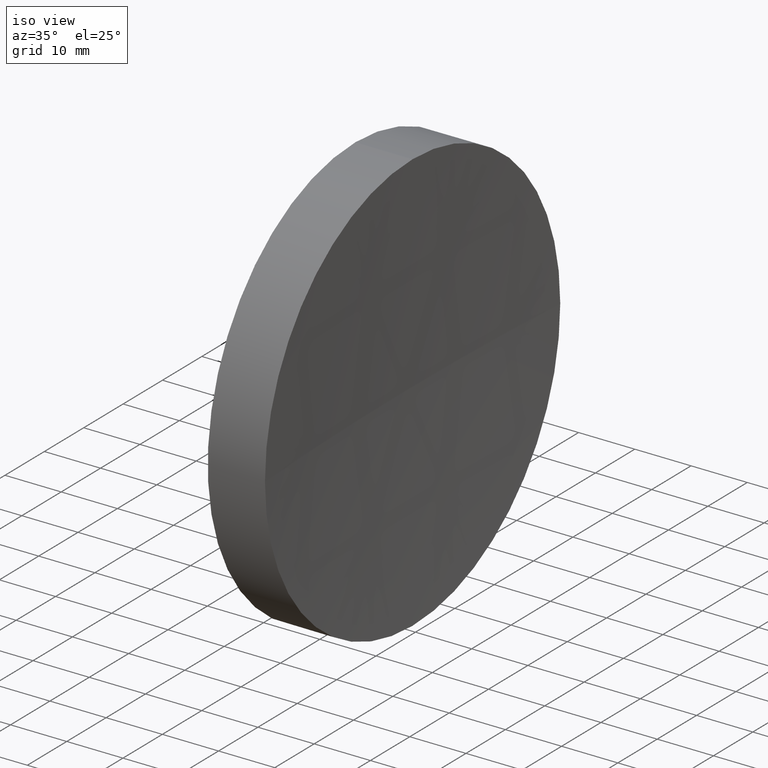
[diagram: clean part render]
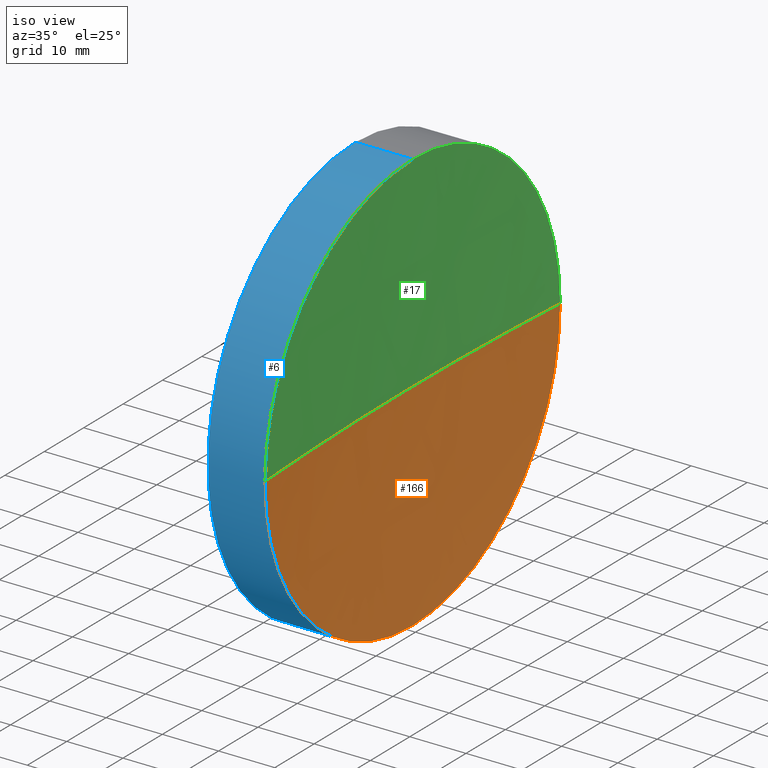
[diagram: same view with three faces highlighted in distinct colors, each labeled with its STEP entity id]
A machine part, iso view with three faces highlighted in distinct colors.
Their STEP definitions:

[orange] entity #166 — the highlighted spherical surface has radius 600 mm.
#4 = CARTESIAN_POINT ( 'NONE',  ( 240.3726307063705000, 138.7560422467448700, 0.0000000000000000000 ) ) ;
#11 = DIRECTION ( 'NONE',  ( 0.0000000000000000000, 0.0000000000000000000, -1.000000000000000000 ) ) ;
#16 = ORIENTED_EDGE ( 'NONE', *, *, #48, .F. ) ;
#19 = EDGE_CURVE ( 'NONE', #60, #21, #104, .T. ) ;
#21 = VERTEX_POINT ( 'NONE', #99 ) ;
#27 = CARTESIAN_POINT ( 'NONE',  ( 240.3726307063705000, 176.2560422467451800, 0.0000000000000000000 ) ) ;
#30 = AXIS2_PLACEMENT_3D ( 'NONE', #147, #146, #117 ) ;
#38 = AXIS2_PLACEMENT_3D ( 'NONE', #182, #165, #155 ) ;
#43 = SPHERICAL_SURFACE ( 'NONE', #85, 600.0000000000001100 ) ;
#44 = DIRECTION ( 'NONE',  ( 1.000000000000000000, 0.0000000000000000000, 0.0000000000000000000 ) ) ;
#45 = AXIS2_PLACEMENT_3D ( 'NONE', #4, #100, #119 ) ;
#48 = EDGE_CURVE ( 'NONE', #108, #57, #178, .T. ) ;
#57 = VERTEX_POINT ( 'NONE', #132 ) ;
#60 = VERTEX_POINT ( 'NONE', #148 ) ;
#62 = ORIENTED_EDGE ( 'NONE', *, *, #186, .F. ) ;
#75 = FACE_OUTER_BOUND ( 'NONE', #141, .T. ) ;
#84 = CARTESIAN_POINT ( 'NONE',  ( 839.1996090565446600, 138.7560422467440700, 0.0000000000000000000 ) ) ;
#85 = AXIS2_PLACEMENT_3D ( 'NONE', #122, #11, #109 ) ;
#96 = ORIENTED_EDGE ( 'NONE', *, *, #19, .F. ) ;
#99 = CARTESIAN_POINT ( 'NONE',  ( 239.1996090565445700, 138.7560422467441000, 0.0000000000000000000 ) ) ;
#100 = DIRECTION ( 'NONE',  ( -1.000000000000000000, -0.0000000000000000000, -0.0000000000000000000 ) ) ;
#102 = EDGE_CURVE ( 'NONE', #108, #21, #173, .T. ) ;
#104 = CIRCLE ( 'NONE', #30, 600.0000000000001100 ) ;
#108 = VERTEX_POINT ( 'NONE', #27 ) ;
#109 = DIRECTION ( 'NONE',  ( 0.0000000000000000000, 1.000000000000000000, 0.0000000000000000000 ) ) ;
#117 = DIRECTION ( 'NONE',  ( 0.0000000000000000000, 1.000000000000000000, 1.224646799147353200E-016 ) ) ;
#119 = DIRECTION ( 'NONE',  ( 0.0000000000000000000, 0.0000000000000000000, 1.000000000000000000 ) ) ;
#122 = CARTESIAN_POINT ( 'NONE',  ( 839.1996090565446600, 138.7560422467440700, 0.0000000000000000000 ) ) ;
#132 = CARTESIAN_POINT ( 'NONE',  ( 240.3726307063705000, 138.7560422467448700, -37.50000000000000700 ) ) ;
#133 = DIRECTION ( 'NONE',  ( 0.0000000000000000000, 0.0000000000000000000, 1.000000000000000000 ) ) ;
#140 = ORIENTED_EDGE ( 'NONE', *, *, #102, .T. ) ;
#141 = EDGE_LOOP ( 'NONE', ( #96, #62, #16, #140 ) ) ;
#144 = AXIS2_PLACEMENT_3D ( 'NONE', #84, #133, #44 ) ;
#146 = DIRECTION ( 'NONE',  ( 0.0000000000000000000, 1.224646799147353200E-016, -1.000000000000000000 ) ) ;
#147 = CARTESIAN_POINT ( 'NONE',  ( 839.1996090565446600, 138.7560422467440700, 0.0000000000000000000 ) ) ;
#148 = CARTESIAN_POINT ( 'NONE',  ( 240.3726307063705000, 101.2560422467437500, -4.592425496802614600E-015 ) ) ;
#155 = DIRECTION ( 'NONE',  ( 0.0000000000000000000, 0.0000000000000000000, 1.000000000000000000 ) ) ;
#158 = CIRCLE ( 'NONE', #38, 37.50000000000000700 ) ;
#165 = DIRECTION ( 'NONE',  ( -1.000000000000000000, -0.0000000000000000000, -0.0000000000000000000 ) ) ;
#166 = ADVANCED_FACE ( 'NONE', ( #75 ), #43, .F. ) ;
#173 = CIRCLE ( 'NONE', #144, 600.0000000000000000 ) ;
#178 = CIRCLE ( 'NONE', #45, 37.50000000000000700 ) ;
#182 = CARTESIAN_POINT ( 'NONE',  ( 240.3726307063705000, 138.7560422467448700, 0.0000000000000000000 ) ) ;
#186 = EDGE_CURVE ( 'NONE', #57, #60, #158, .T. ) ;

[blue] entity #6 — the highlighted cylindrical surface (partial cylindrical patch) has radius 37.5 mm, axis along (-1, -0, -0).
#1 = DIRECTION ( 'NONE',  ( -1.000000000000000000, -0.0000000000000000000, -0.0000000000000000000 ) ) ;
#6 = ADVANCED_FACE ( 'NONE', ( #152 ), #31, .T. ) ;
#13 = DIRECTION ( 'NONE',  ( 0.0000000000000000000, 0.0000000000000000000, 1.000000000000000000 ) ) ;
#22 = DIRECTION ( 'NONE',  ( -1.000000000000000000, -0.0000000000000000000, -0.0000000000000000000 ) ) ;
#25 = CIRCLE ( 'NONE', #156, 37.50000000000000700 ) ;
#26 = CARTESIAN_POINT ( 'NONE',  ( 217.9702860043302100, 138.7560422467448700, 37.50000000000000700 ) ) ;
#28 = ORIENTED_EDGE ( 'NONE', *, *, #150, .F. ) ;
#31 = CYLINDRICAL_SURFACE ( 'NONE', #167, 37.50000000000000700 ) ;
#37 = EDGE_CURVE ( 'NONE', #112, #101, #63, .T. ) ;
#38 = AXIS2_PLACEMENT_3D ( 'NONE', #182, #165, #155 ) ;
#42 = CARTESIAN_POINT ( 'NONE',  ( 230.1996119052661200, 138.7560422467448700, 0.0000000000000000000 ) ) ;
#52 = CARTESIAN_POINT ( 'NONE',  ( 240.3726307063705000, 138.7560422467448700, 37.50000000000000700 ) ) ;
#57 = VERTEX_POINT ( 'NONE', #132 ) ;
#58 = VECTOR ( 'NONE', #22, 1000.000000000000000 ) ;
#59 = DIRECTION ( 'NONE',  ( 0.0000000000000000000, 0.0000000000000000000, 1.000000000000000000 ) ) ;
#60 = VERTEX_POINT ( 'NONE', #148 ) ;
#63 = LINE ( 'NONE', #26, #137 ) ;
#70 = CARTESIAN_POINT ( 'NONE',  ( 230.1996119052661200, 138.7560422467448700, 37.50000000000000700 ) ) ;
#80 = ORIENTED_EDGE ( 'NONE', *, *, #123, .T. ) ;
#91 = ORIENTED_EDGE ( 'NONE', *, *, #37, .T. ) ;
#101 = VERTEX_POINT ( 'NONE', #70 ) ;
#107 = DIRECTION ( 'NONE',  ( -1.000000000000000000, -0.0000000000000000000, -0.0000000000000000000 ) ) ;
#112 = VERTEX_POINT ( 'NONE', #52 ) ;
#114 = EDGE_CURVE ( 'NONE', #154, #101, #25, .T. ) ;
#115 = CARTESIAN_POINT ( 'NONE',  ( 217.9702860043302100, 138.7560422467448700, -37.50000000000000700 ) ) ;
#121 = CARTESIAN_POINT ( 'NONE',  ( 217.9702860043302100, 138.7560422467448700, 0.0000000000000000000 ) ) ;
#123 = EDGE_CURVE ( 'NONE', #60, #112, #172, .T. ) ;
#125 = CARTESIAN_POINT ( 'NONE',  ( 240.3726307063705000, 138.7560422467448700, 0.0000000000000000000 ) ) ;
#126 = CARTESIAN_POINT ( 'NONE',  ( 230.1996119052661200, 138.7560422467448700, -37.50000000000000700 ) ) ;
#132 = CARTESIAN_POINT ( 'NONE',  ( 240.3726307063705000, 138.7560422467448700, -37.50000000000000700 ) ) ;
#137 = VECTOR ( 'NONE', #174, 1000.000000000000000 ) ;
#148 = CARTESIAN_POINT ( 'NONE',  ( 240.3726307063705000, 101.2560422467437500, -4.592425496802614600E-015 ) ) ;
#150 = EDGE_CURVE ( 'NONE', #57, #154, #164, .T. ) ;
#152 = FACE_OUTER_BOUND ( 'NONE', #181, .T. ) ;
#154 = VERTEX_POINT ( 'NONE', #126 ) ;
#155 = DIRECTION ( 'NONE',  ( 0.0000000000000000000, 0.0000000000000000000, 1.000000000000000000 ) ) ;
#156 = AXIS2_PLACEMENT_3D ( 'NONE', #42, #175, #163 ) ;
#158 = CIRCLE ( 'NONE', #38, 37.50000000000000700 ) ;
#163 = DIRECTION ( 'NONE',  ( 0.0000000000000000000, 0.0000000000000000000, 1.000000000000000000 ) ) ;
#164 = LINE ( 'NONE', #115, #58 ) ;
#165 = DIRECTION ( 'NONE',  ( -1.000000000000000000, -0.0000000000000000000, -0.0000000000000000000 ) ) ;
#167 = AXIS2_PLACEMENT_3D ( 'NONE', #121, #107, #59 ) ;
#169 = ORIENTED_EDGE ( 'NONE', *, *, #114, .F. ) ;
#171 = AXIS2_PLACEMENT_3D ( 'NONE', #125, #1, #13 ) ;
#172 = CIRCLE ( 'NONE', #171, 37.50000000000000700 ) ;
#174 = DIRECTION ( 'NONE',  ( -1.000000000000000000, -0.0000000000000000000, -0.0000000000000000000 ) ) ;
#175 = DIRECTION ( 'NONE',  ( -1.000000000000000000, -0.0000000000000000000, -0.0000000000000000000 ) ) ;
#177 = ORIENTED_EDGE ( 'NONE', *, *, #186, .T. ) ;
#181 = EDGE_LOOP ( 'NONE', ( #28, #177, #80, #91, #169 ) ) ;
#182 = CARTESIAN_POINT ( 'NONE',  ( 240.3726307063705000, 138.7560422467448700, 0.0000000000000000000 ) ) ;
#186 = EDGE_CURVE ( 'NONE', #57, #60, #158, .T. ) ;

[green] entity #17 — the highlighted spherical surface has radius 600 mm.
#1 = DIRECTION ( 'NONE',  ( -1.000000000000000000, -0.0000000000000000000, -0.0000000000000000000 ) ) ;
#13 = DIRECTION ( 'NONE',  ( 0.0000000000000000000, 0.0000000000000000000, 1.000000000000000000 ) ) ;
#17 = ADVANCED_FACE ( 'NONE', ( #184 ), #66, .F. ) ;
#18 = CARTESIAN_POINT ( 'NONE',  ( 839.1996090565446600, 138.7560422467440700, 0.0000000000000000000 ) ) ;
#19 = EDGE_CURVE ( 'NONE', #60, #21, #104, .T. ) ;
#21 = VERTEX_POINT ( 'NONE', #99 ) ;
#24 = ORIENTED_EDGE ( 'NONE', *, *, #102, .F. ) ;
#27 = CARTESIAN_POINT ( 'NONE',  ( 240.3726307063705000, 176.2560422467451800, 0.0000000000000000000 ) ) ;
#30 = AXIS2_PLACEMENT_3D ( 'NONE', #147, #146, #117 ) ;
#34 = DIRECTION ( 'NONE',  ( 0.0000000000000000000, 0.0000000000000000000, -1.000000000000000000 ) ) ;
#41 = EDGE_CURVE ( 'NONE', #112, #108, #97, .T. ) ;
#44 = DIRECTION ( 'NONE',  ( 1.000000000000000000, 0.0000000000000000000, 0.0000000000000000000 ) ) ;
#52 = CARTESIAN_POINT ( 'NONE',  ( 240.3726307063705000, 138.7560422467448700, 37.50000000000000700 ) ) ;
#60 = VERTEX_POINT ( 'NONE', #148 ) ;
#64 = ORIENTED_EDGE ( 'NONE', *, *, #19, .T. ) ;
#66 = SPHERICAL_SURFACE ( 'NONE', #71, 600.0000000000001100 ) ;
#69 = ORIENTED_EDGE ( 'NONE', *, *, #41, .F. ) ;
#71 = AXIS2_PLACEMENT_3D ( 'NONE', #18, #34, #168 ) ;
#73 = CARTESIAN_POINT ( 'NONE',  ( 240.3726307063705000, 138.7560422467448700, 0.0000000000000000000 ) ) ;
#84 = CARTESIAN_POINT ( 'NONE',  ( 839.1996090565446600, 138.7560422467440700, 0.0000000000000000000 ) ) ;
#88 = DIRECTION ( 'NONE',  ( -1.000000000000000000, -0.0000000000000000000, -0.0000000000000000000 ) ) ;
#97 = CIRCLE ( 'NONE', #134, 37.50000000000000700 ) ;
#99 = CARTESIAN_POINT ( 'NONE',  ( 239.1996090565445700, 138.7560422467441000, 0.0000000000000000000 ) ) ;
#102 = EDGE_CURVE ( 'NONE', #108, #21, #173, .T. ) ;
#103 = EDGE_LOOP ( 'NONE', ( #129, #64, #24, #69 ) ) ;
#104 = CIRCLE ( 'NONE', #30, 600.0000000000001100 ) ;
#108 = VERTEX_POINT ( 'NONE', #27 ) ;
#112 = VERTEX_POINT ( 'NONE', #52 ) ;
#117 = DIRECTION ( 'NONE',  ( 0.0000000000000000000, 1.000000000000000000, 1.224646799147353200E-016 ) ) ;
#123 = EDGE_CURVE ( 'NONE', #60, #112, #172, .T. ) ;
#125 = CARTESIAN_POINT ( 'NONE',  ( 240.3726307063705000, 138.7560422467448700, 0.0000000000000000000 ) ) ;
#129 = ORIENTED_EDGE ( 'NONE', *, *, #123, .F. ) ;
#131 = DIRECTION ( 'NONE',  ( 0.0000000000000000000, 0.0000000000000000000, 1.000000000000000000 ) ) ;
#133 = DIRECTION ( 'NONE',  ( 0.0000000000000000000, 0.0000000000000000000, 1.000000000000000000 ) ) ;
#134 = AXIS2_PLACEMENT_3D ( 'NONE', #73, #88, #131 ) ;
#144 = AXIS2_PLACEMENT_3D ( 'NONE', #84, #133, #44 ) ;
#146 = DIRECTION ( 'NONE',  ( 0.0000000000000000000, 1.224646799147353200E-016, -1.000000000000000000 ) ) ;
#147 = CARTESIAN_POINT ( 'NONE',  ( 839.1996090565446600, 138.7560422467440700, 0.0000000000000000000 ) ) ;
#148 = CARTESIAN_POINT ( 'NONE',  ( 240.3726307063705000, 101.2560422467437500, -4.592425496802614600E-015 ) ) ;
#168 = DIRECTION ( 'NONE',  ( 0.0000000000000000000, 1.000000000000000000, 0.0000000000000000000 ) ) ;
#171 = AXIS2_PLACEMENT_3D ( 'NONE', #125, #1, #13 ) ;
#172 = CIRCLE ( 'NONE', #171, 37.50000000000000700 ) ;
#173 = CIRCLE ( 'NONE', #144, 600.0000000000000000 ) ;
#184 = FACE_OUTER_BOUND ( 'NONE', #103, .T. ) ;